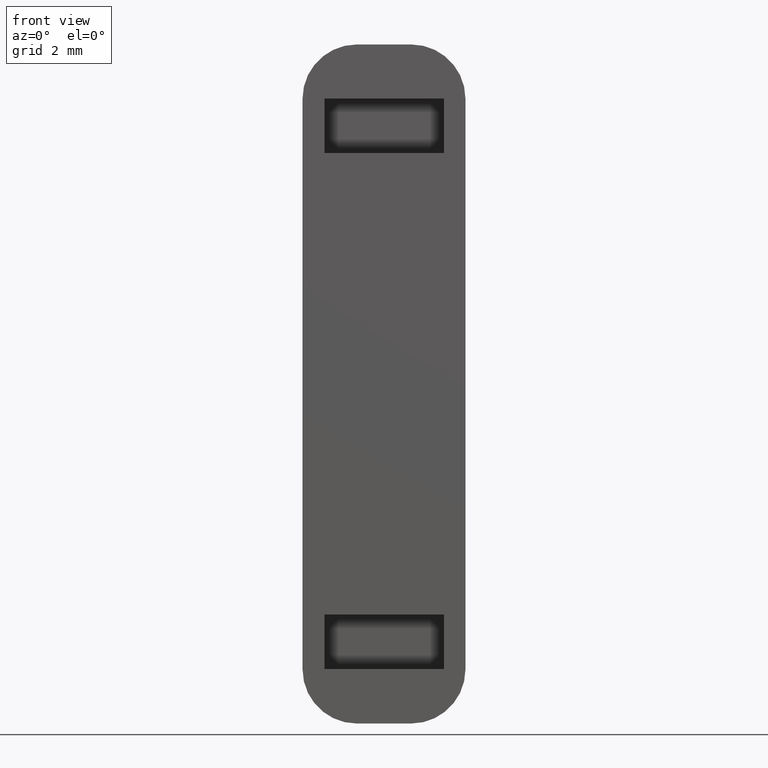
[diagram: clean part render]
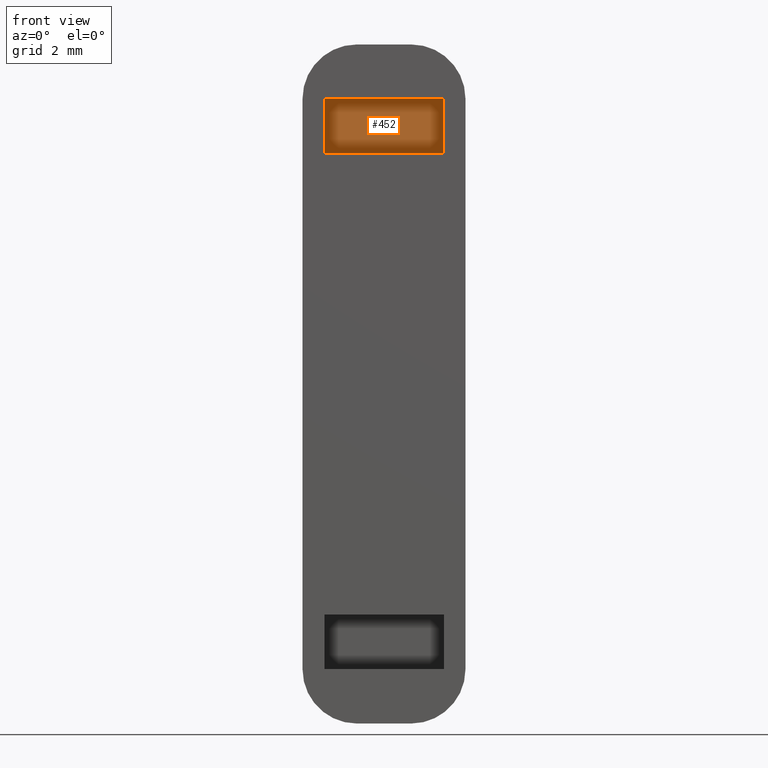
[diagram: same view with one face highlighted and labeled with its STEP entity id]
A machine part, front view. The second image highlights one B-rep face of the part: STEP entity #452.
In plain terms, the highlighted planar face has unit normal (0, 1, 0).
Its self-contained STEP definition (entity closure, byte-faithful):
#58=FACE_OUTER_BOUND('',#86,.T.);
#86=EDGE_LOOP('',(#335,#336,#337,#338));
#114=LINE('',#702,#158);
#120=LINE('',#715,#164);
#125=LINE('',#725,#169);
#130=LINE('',#733,#174);
#158=VECTOR('',#555,10.);
#164=VECTOR('',#567,10.);
#169=VECTOR('',#576,10.);
#174=VECTOR('',#585,10.);
#200=VERTEX_POINT('',#696);
#202=VERTEX_POINT('',#700);
#206=VERTEX_POINT('',#714);
#209=VERTEX_POINT('',#724);
#242=EDGE_CURVE('',#200,#202,#114,.T.);
#248=EDGE_CURVE('',#200,#206,#120,.T.);
#253=EDGE_CURVE('',#209,#206,#125,.T.);
#258=EDGE_CURVE('',#202,#209,#130,.T.);
#335=ORIENTED_EDGE('',*,*,#242,.T.);
#336=ORIENTED_EDGE('',*,*,#258,.T.);
#337=ORIENTED_EDGE('',*,*,#253,.T.);
#338=ORIENTED_EDGE('',*,*,#248,.F.);
#436=PLANE('',#503);
#452=ADVANCED_FACE('',(#58),#436,.F.);
#503=AXIS2_PLACEMENT_3D('',#734,#586,#587);
#555=DIRECTION('',(0.,0.,-1.));
#567=DIRECTION('',(1.,0.,0.));
#576=DIRECTION('',(0.,0.,1.));
#585=DIRECTION('',(1.,0.,0.));
#586=DIRECTION('center_axis',(0.,1.,0.));
#587=DIRECTION('ref_axis',(0.,0.,-1.));
#696=CARTESIAN_POINT('',(-2.2,2.,-2.));
#700=CARTESIAN_POINT('',(-2.2,2.,-4.00000000000001));
#702=CARTESIAN_POINT('',(-2.2,2.,-2.5));
#714=CARTESIAN_POINT('',(2.2,2.,-2.));
#715=CARTESIAN_POINT('',(0.,2.,-2.));
#724=CARTESIAN_POINT('',(2.2,2.,-4.00000000000001));
#725=CARTESIAN_POINT('',(2.2,2.,-2.5));
#733=CARTESIAN_POINT('',(0.,2.,-4.00000000000001));
#734=CARTESIAN_POINT('Origin',(0.,2.,-2.));